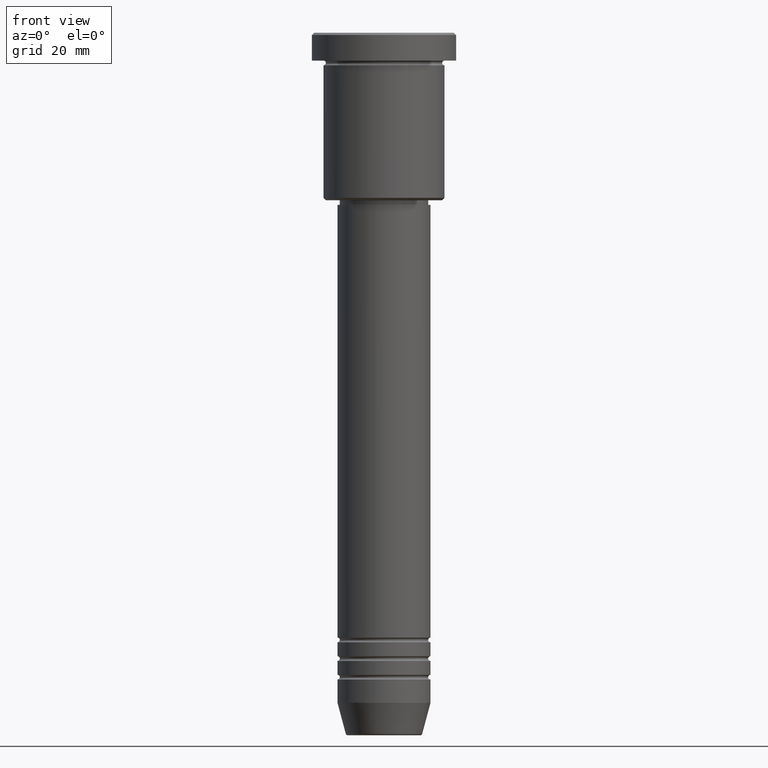
[diagram: clean part render]
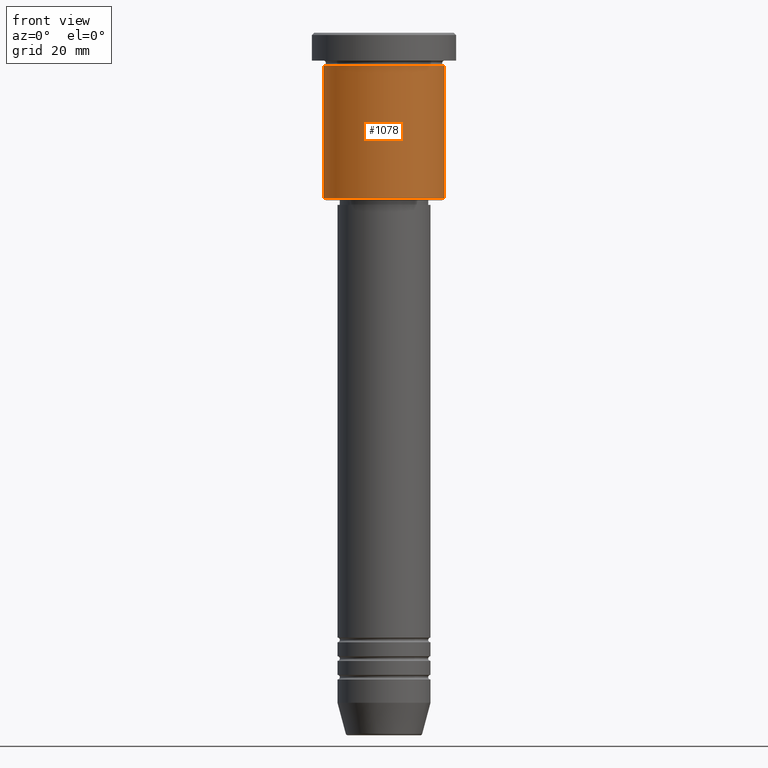
[diagram: same view with one face highlighted and labeled with its STEP entity id]
A machine part, front view. The second image highlights one B-rep face of the part: STEP entity #1078.
In plain terms, the highlighted cylindrical surface (partial cylindrical patch) has radius 13 mm, axis along (-0, -0, 1).
Its self-contained STEP definition (entity closure, byte-faithful):
#61 = AXIS2_PLACEMENT_3D ( 'NONE', #1064, #221, #1145 ) ;
#63 = VECTOR ( 'NONE', #740, 1000.000000000000000 ) ;
#72 = CARTESIAN_POINT ( 'NONE',  ( 13.00000000000000178, 0.000000000000000000, 0.000000000000000000 ) ) ;
#73 = VERTEX_POINT ( 'NONE', #930 ) ;
#77 = ORIENTED_EDGE ( 'NONE', *, *, #580, .F. ) ;
#118 = CARTESIAN_POINT ( 'NONE',  ( -13.00000000000000178, 1.592040838891559293E-15, 0.000000000000000000 ) ) ;
#131 = EDGE_CURVE ( 'NONE', #1015, #867, #937, .T. ) ;
#203 = AXIS2_PLACEMENT_3D ( 'NONE', #534, #910, #463 ) ;
#221 = DIRECTION ( 'NONE',  ( -0.000000000000000000, -0.000000000000000000, 1.000000000000000000 ) ) ;
#243 = VECTOR ( 'NONE', #815, 1000.000000000000000 ) ;
#372 = LINE ( 'NONE', #118, #63 ) ;
#373 = AXIS2_PLACEMENT_3D ( 'NONE', #687, #848, #857 ) ;
#414 = CIRCLE ( 'NONE', #373, 13.00000000000000178 ) ;
#463 = DIRECTION ( 'NONE',  ( 1.000000000000000000, 0.000000000000000000, 0.000000000000000000 ) ) ;
#519 = FACE_OUTER_BOUND ( 'NONE', #786, .T. ) ;
#534 = CARTESIAN_POINT ( 'NONE',  ( 0.000000000000000000, 0.000000000000000000, 0.000000000000000000 ) ) ;
#580 = EDGE_CURVE ( 'NONE', #1015, #73, #372, .T. ) ;
#599 = CARTESIAN_POINT ( 'NONE',  ( 13.00000000000000178, 0.000000000000000000, -35.50000000000001421 ) ) ;
#687 = CARTESIAN_POINT ( 'NONE',  ( 0.000000000000000000, 0.000000000000000000, -6.999999999999995559 ) ) ;
#692 = EDGE_CURVE ( 'NONE', #73, #813, #414, .T. ) ;
#704 = LINE ( 'NONE', #72, #243 ) ;
#709 = CYLINDRICAL_SURFACE ( 'NONE', #203, 13.00000000000000178 ) ;
#713 = ORIENTED_EDGE ( 'NONE', *, *, #1038, .T. ) ;
#740 = DIRECTION ( 'NONE',  ( -0.000000000000000000, -0.000000000000000000, 1.000000000000000000 ) ) ;
#786 = EDGE_LOOP ( 'NONE', ( #77, #1075, #713, #794 ) ) ;
#794 = ORIENTED_EDGE ( 'NONE', *, *, #692, .F. ) ;
#796 = CARTESIAN_POINT ( 'NONE',  ( -13.00000000000000178, 1.592040838891559293E-15, -35.50000000000001421 ) ) ;
#813 = VERTEX_POINT ( 'NONE', #1037 ) ;
#815 = DIRECTION ( 'NONE',  ( -0.000000000000000000, -0.000000000000000000, 1.000000000000000000 ) ) ;
#848 = DIRECTION ( 'NONE',  ( -0.000000000000000000, -0.000000000000000000, 1.000000000000000000 ) ) ;
#857 = DIRECTION ( 'NONE',  ( 1.000000000000000000, 0.000000000000000000, 0.000000000000000000 ) ) ;
#867 = VERTEX_POINT ( 'NONE', #599 ) ;
#910 = DIRECTION ( 'NONE',  ( -0.000000000000000000, -0.000000000000000000, 1.000000000000000000 ) ) ;
#930 = CARTESIAN_POINT ( 'NONE',  ( -13.00000000000000178, 1.592040838891559293E-15, -6.999999999999995559 ) ) ;
#937 = CIRCLE ( 'NONE', #61, 13.00000000000000178 ) ;
#1015 = VERTEX_POINT ( 'NONE', #796 ) ;
#1037 = CARTESIAN_POINT ( 'NONE',  ( 13.00000000000000178, 0.000000000000000000, -6.999999999999995559 ) ) ;
#1038 = EDGE_CURVE ( 'NONE', #867, #813, #704, .T. ) ;
#1064 = CARTESIAN_POINT ( 'NONE',  ( 0.000000000000000000, 0.000000000000000000, -35.50000000000001421 ) ) ;
#1075 = ORIENTED_EDGE ( 'NONE', *, *, #131, .T. ) ;
#1078 = ADVANCED_FACE ( 'NONE', ( #519 ), #709, .T. ) ;
#1145 = DIRECTION ( 'NONE',  ( -1.000000000000000000, 0.000000000000000000, 0.000000000000000000 ) ) ;